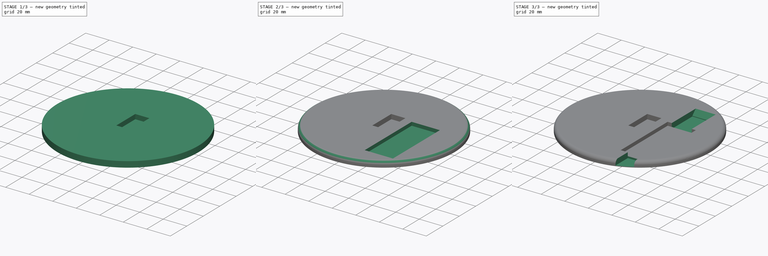
[diagram: build sequence overview — one tinted view per stage of 3, left to right]
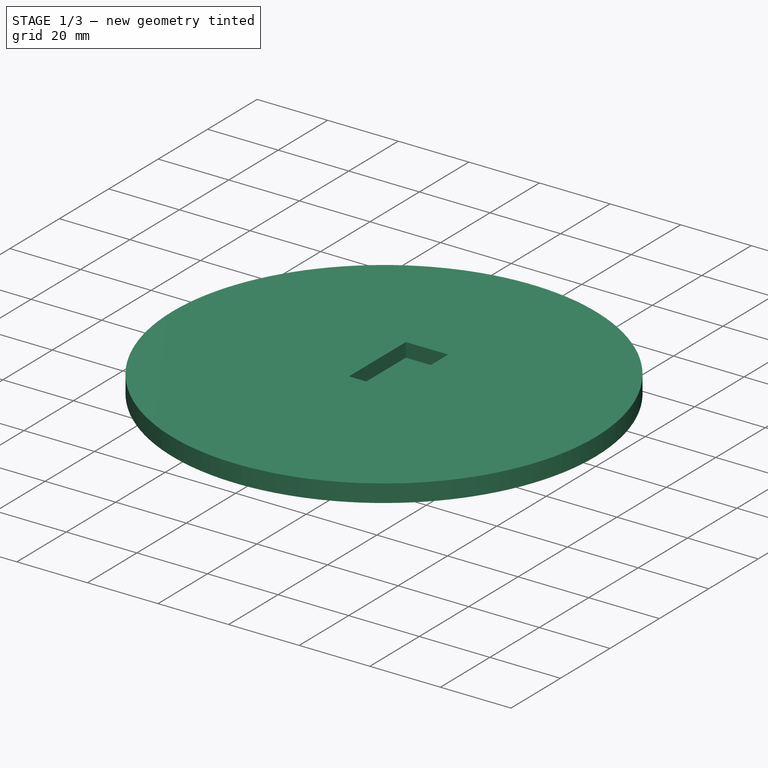
[diagram: stage 1 of 3 — iso view after this stage's code; geometry added in this stage tinted green]
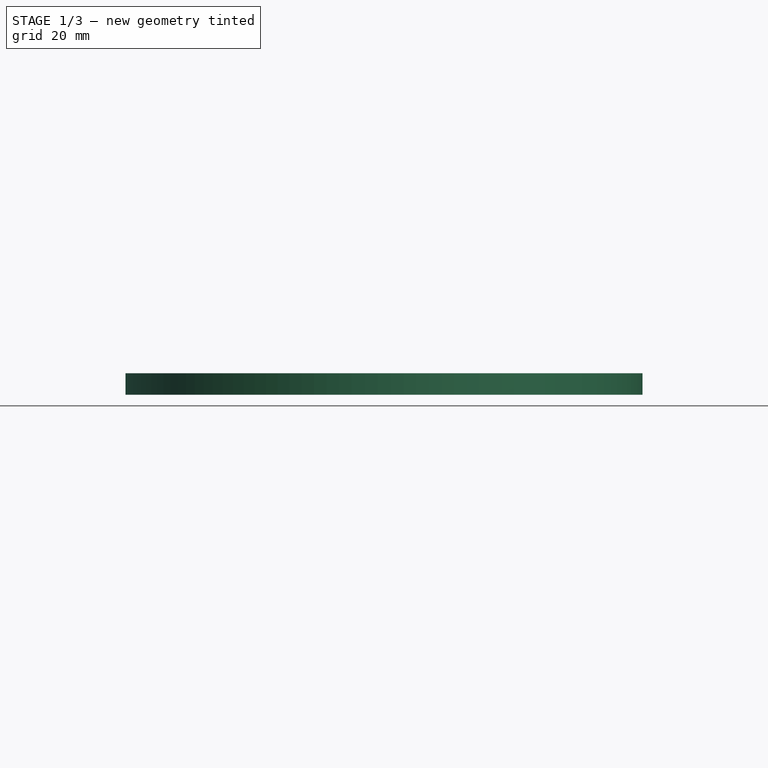
[diagram: stage 1 of 3 — front view after this stage's code; geometry added in this stage tinted green]
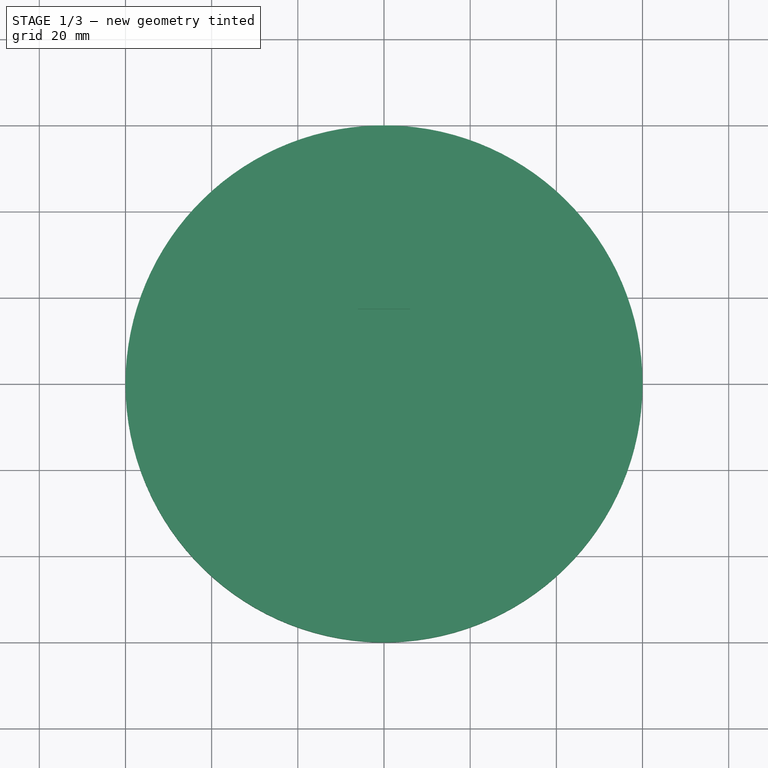
[diagram: stage 1 of 3 — top view after this stage's code; geometry added in this stage tinted green]
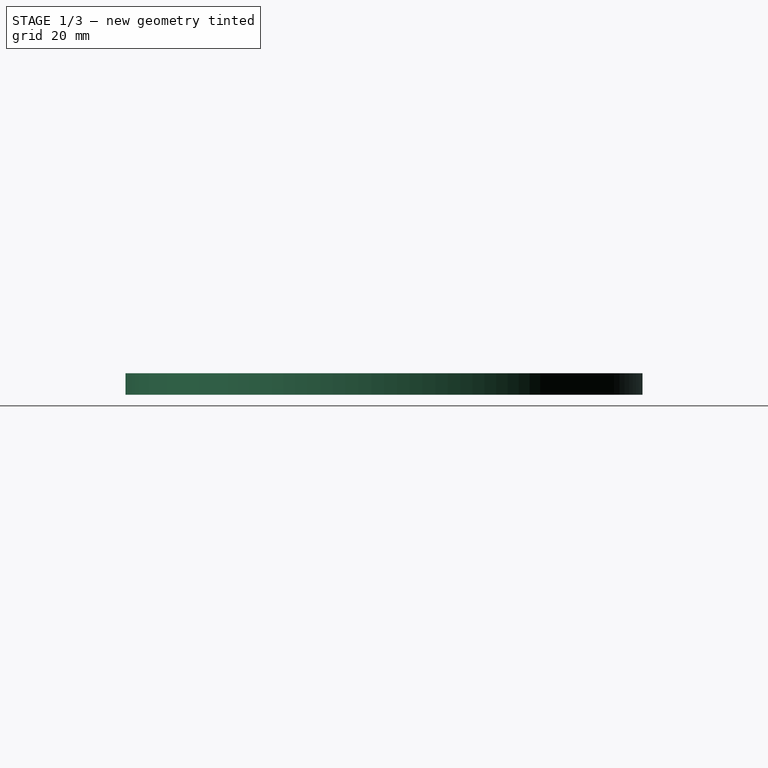
[diagram: stage 1 of 3 — right view after this stage's code; geometry added in this stage tinted green]
FCSTD DOCUMENT  (FreeCAD 0.18R4 (GitTag))
Label: ScannerServoBase
License: All rights reserved
LicenseURL: http://en.wikipedia.org/wiki/All_rights_reserved
objects: Sketcher::SketchObject×4, PartDesign::Pocket×3, PartDesign::Pad×1, PartDesign::Fillet×1, PartDesign::Chamfer×1, PartDesign::Body×1
note: 15 computed .brp shape members not serialized (recipe doc carries the construction recipe); baked Part::Feature solids carry a one-line shape summary decoded from their .brp

FEATURE [Sketcher::SketchObject] Sketch
  MapMode = 5
  Support = -> [XY_Plane]
  sketch-geometry (1):
    g0: Circle CenterX=0 CenterY=0 CenterZ=0 NormalX=0 NormalY=0 NormalZ=1 AngleXU=0 Radius=60
  constraints (2):
    c: Coincident(g0,g-1)
    c: Radius(g0) = 60
FEATURE [PartDesign::Pad] Pad
  Length = 5
  Length2 = 100
  Profile = -> Sketch
  Type = 0
FEATURE [Sketcher::SketchObject] Sketch001
  MapMode = 5
  Placement = pos=(0,0,5) rot=(0,0,1;0rad)
  Support = -> [Pad]
  sketch-geometry (4):
    g0: LineSegment StartX=-6 StartY=17.4 StartZ=0 EndX=6 EndY=17.4 EndZ=0
    g1: LineSegment StartX=6 StartY=17.4 StartZ=0 EndX=6 EndY=-5.6 EndZ=0
    g2: LineSegment StartX=6 StartY=-5.6 StartZ=0 EndX=-6 EndY=-5.6 EndZ=0
    g3: LineSegment StartX=-6 StartY=-5.6 StartZ=0 EndX=-6 EndY=17.4 EndZ=0
  constraints (12):
    c: Coincident(g0,g1)
    c: Coincident(g1,g2)
    c: Coincident(g2,g3)
    c: Coincident(g3,g0)
    c: Horizontal(g0)
    c: Horizontal(g2)
    c: Vertical(g1)
    c: Vertical(g3)
    c: DistanceX(g0,g0) = 12
    c: DistanceY(g1,g1) = 23
    c: DistanceY(g-1,g0) = 17.4
    c: DistanceX(g-1,g0) = 6
FEATURE [PartDesign::Pocket] Pocket
  BaseFeature = -> Pad
  Length = 4
  Length2 = 100
  Profile = -> Sketch001
  Type = 0
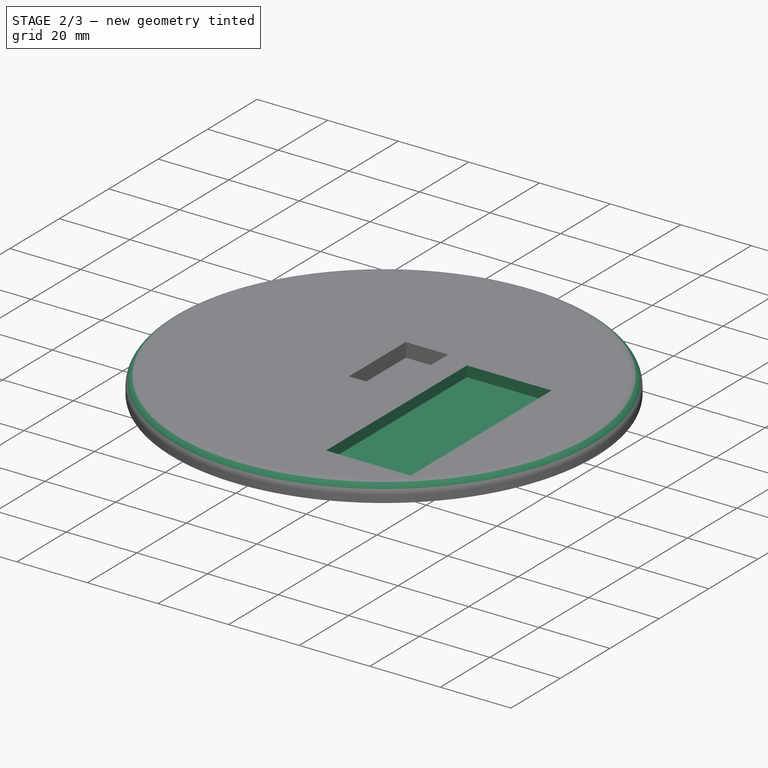
[diagram: stage 2 of 3 — iso view after this stage's code; geometry added in this stage tinted green]
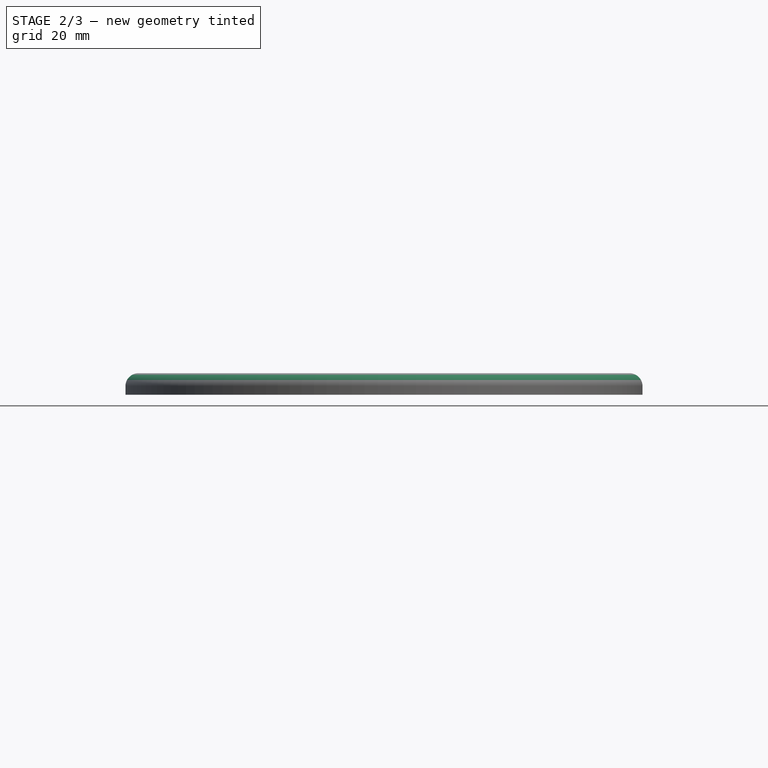
[diagram: stage 2 of 3 — front view after this stage's code; geometry added in this stage tinted green]
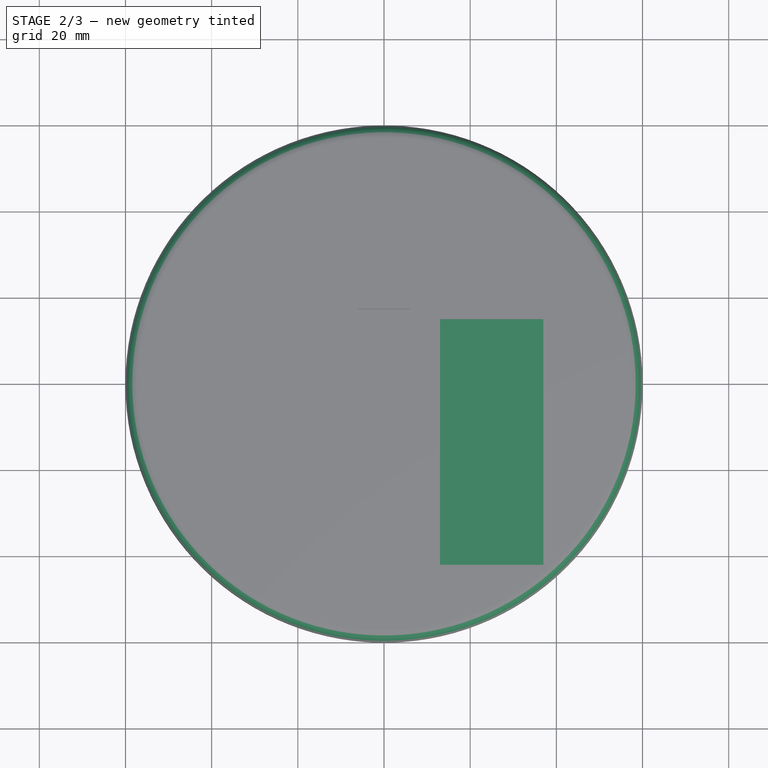
[diagram: stage 2 of 3 — top view after this stage's code; geometry added in this stage tinted green]
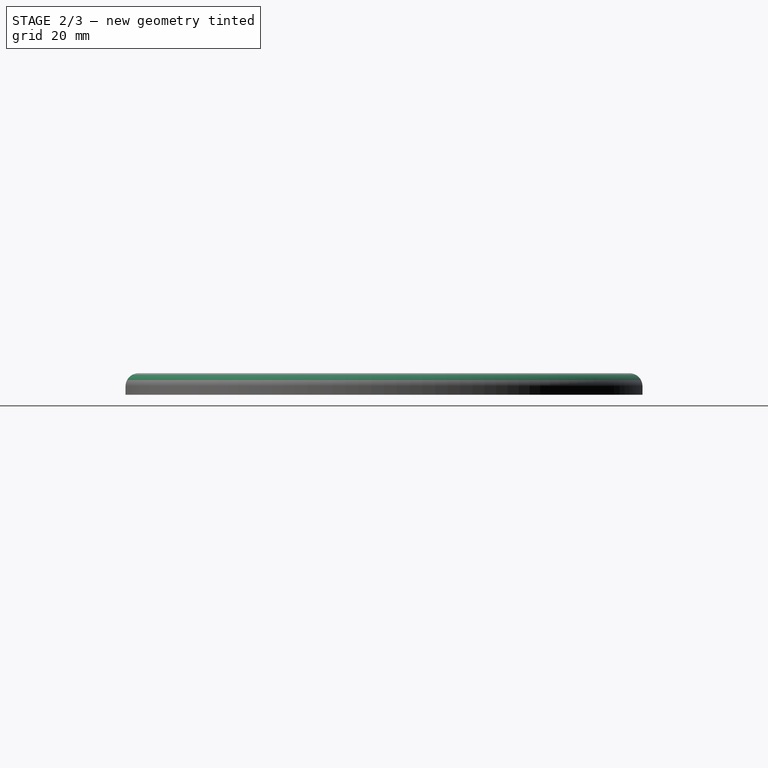
[diagram: stage 2 of 3 — right view after this stage's code; geometry added in this stage tinted green]
FEATURE [PartDesign::Fillet] Fillet
  Base = -> Pocket [Edge3]
  BaseFeature = -> Pocket
  Radius = 3
FEATURE [Sketcher::SketchObject] Sketch002
  MapMode = 5
  Placement = pos=(0,0,5) rot=(0,0,1;0rad)
  Support = -> [Fillet]
  sketch-geometry (4):
    g0: LineSegment StartX=13 StartY=15 StartZ=0 EndX=37 EndY=15 EndZ=0
    g1: LineSegment StartX=37 StartY=15 StartZ=0 EndX=37 EndY=-42 EndZ=0
    g2: LineSegment StartX=37 StartY=-42 StartZ=0 EndX=13 EndY=-42 EndZ=0
    g3: LineSegment StartX=13 StartY=-42 StartZ=0 EndX=13 EndY=15 EndZ=0
  constraints (12):
    c: Coincident(g0,g1)
    c: Coincident(g1,g2)
    c: Coincident(g2,g3)
    c: Coincident(g3,g0)
    c: Horizontal(g0)
    c: Horizontal(g2)
    c: Vertical(g1)
    c: Vertical(g3)
    c: DistanceX(g0,g0) = 24
    c: DistanceY(g1,g1) = 57
    c: DistanceX(g-1,g0) = 13
    c: DistanceY(g-1,g0) = 15
FEATURE [PartDesign::Pocket] Pocket001
  BaseFeature = -> Fillet
  Length = 3
  Length2 = 100
  Profile = -> Sketch002
  Type = 0
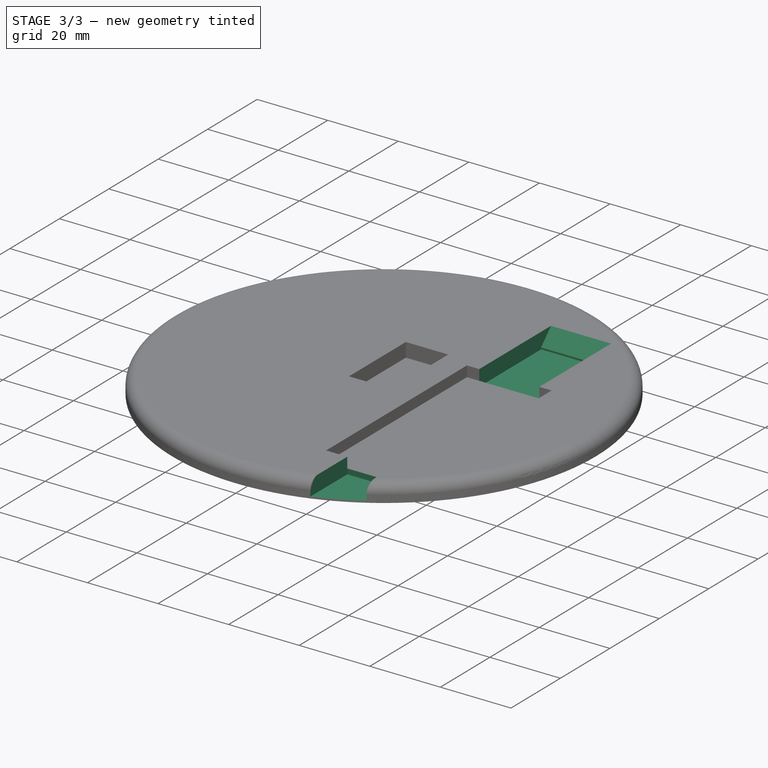
[diagram: stage 3 of 3 — iso view after this stage's code; geometry added in this stage tinted green]
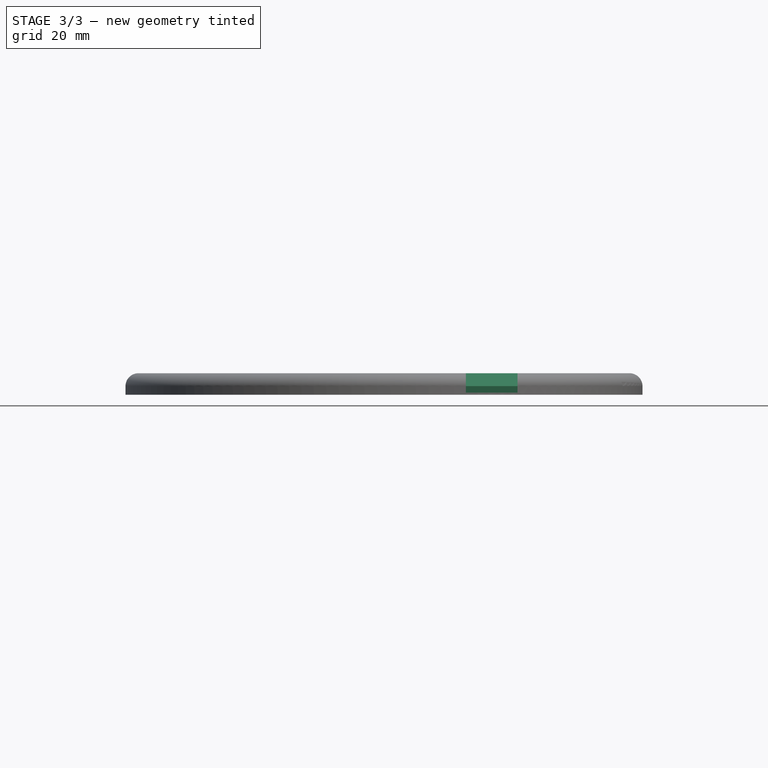
[diagram: stage 3 of 3 — front view after this stage's code; geometry added in this stage tinted green]
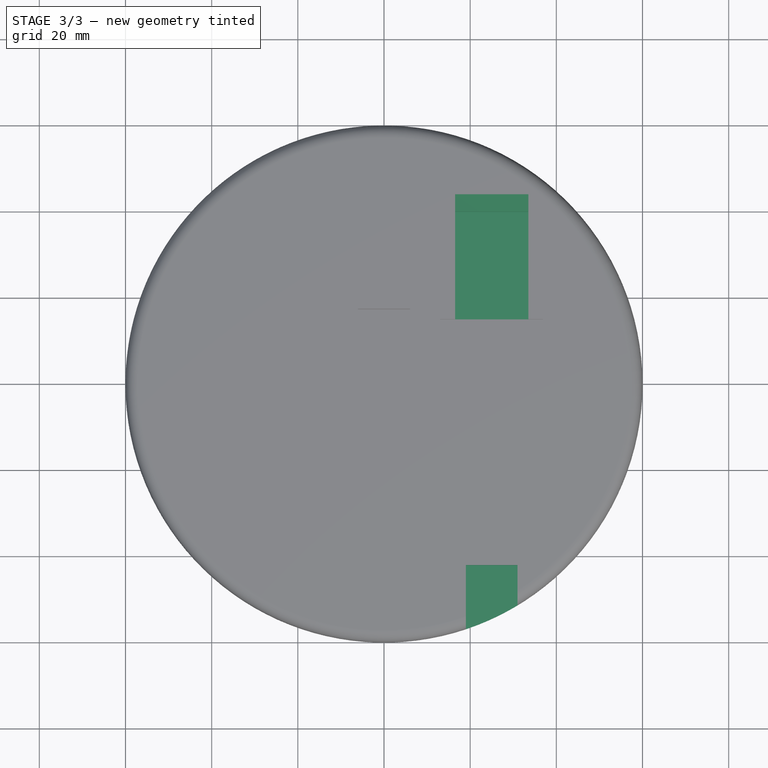
[diagram: stage 3 of 3 — top view after this stage's code; geometry added in this stage tinted green]
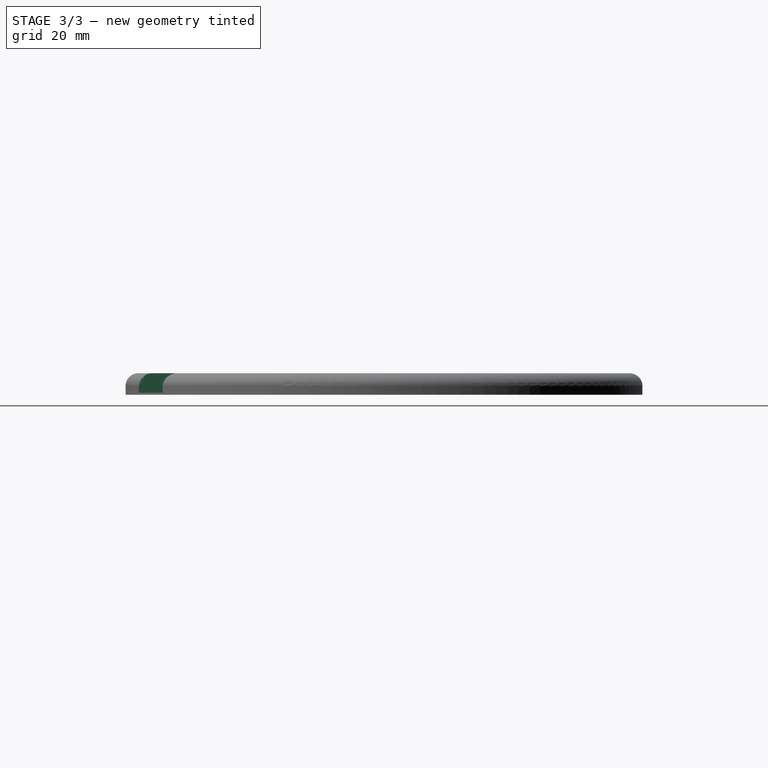
[diagram: stage 3 of 3 — right view after this stage's code; geometry added in this stage tinted green]
FEATURE [Sketcher::SketchObject] Sketch003
  MapMode = 5
  Placement = pos=(0,0,5) rot=(0,0,1;0rad)
  Support = -> [Pocket001]
  sketch-geometry (8):
    g0: LineSegment StartX=16.5 StartY=40 StartZ=0 EndX=33.5 EndY=40 EndZ=0
    g1: LineSegment StartX=33.5 StartY=40 StartZ=0 EndX=33.5 EndY=15 EndZ=0
    g2: LineSegment StartX=33.5 StartY=15 StartZ=0 EndX=16.5 EndY=15 EndZ=0
    g3: LineSegment StartX=16.5 StartY=15 StartZ=0 EndX=16.5 EndY=40 EndZ=0
    g4: LineSegment StartX=19 StartY=-42 StartZ=0 EndX=31 EndY=-42 EndZ=0
    g5: LineSegment StartX=31 StartY=-42 StartZ=0 EndX=31 EndY=-62 EndZ=0
    g6: LineSegment StartX=31 StartY=-62 StartZ=0 EndX=19 EndY=-62 EndZ=0
    g7: LineSegment StartX=19 StartY=-62 StartZ=0 EndX=19 EndY=-42 EndZ=0
  constraints (24):
    c: Coincident(g0,g1)
    c: Coincident(g1,g2)
    c: Coincident(g2,g3)
    c: Coincident(g3,g0)
    c: Horizontal(g0)
    c: Horizontal(g2)
    c: Vertical(g1)
    c: Vertical(g3)
    c: DistanceX(g0,g0) = 17
    c: DistanceX(g-1,g0) = 16.5
    c: DistanceY(g1,g1) = 25
    c: DistanceY(g-1,g2) = 15
    c: Coincident(g4,g5)
    c: Coincident(g5,g6)
    c: Coincident(g6,g7)
    c: Coincident(g7,g4)
    c: Horizontal(g4)
    c: Horizontal(g6)
    c: Vertical(g5)
    c: Vertical(g7)
    c: DistanceY(g5,g5) = 20
    c: DistanceY(g4,g-1) = 42
    c: DistanceX(g4,g4) = 12
    c: DistanceX(g-1,g4) = 19
FEATURE [PartDesign::Pocket] Pocket002
  BaseFeature = -> Pocket001
  Length = 4.5
  Length2 = 100
  Profile = -> Sketch003
  Type = 0
FEATURE [PartDesign::Chamfer] Chamfer
  Base = -> Pocket002 [Edge26]
  BaseFeature = -> Pocket002
  Size = 4
FEATURE [PartDesign::Body] Body
  Group = -> [Sketch,Pad,Sketch001,Pocket,Fillet,Sketch002,Pocket001,Sketch003,Pocket002,Chamfer]
  Origin = -> Origin
  Tip = -> Chamfer
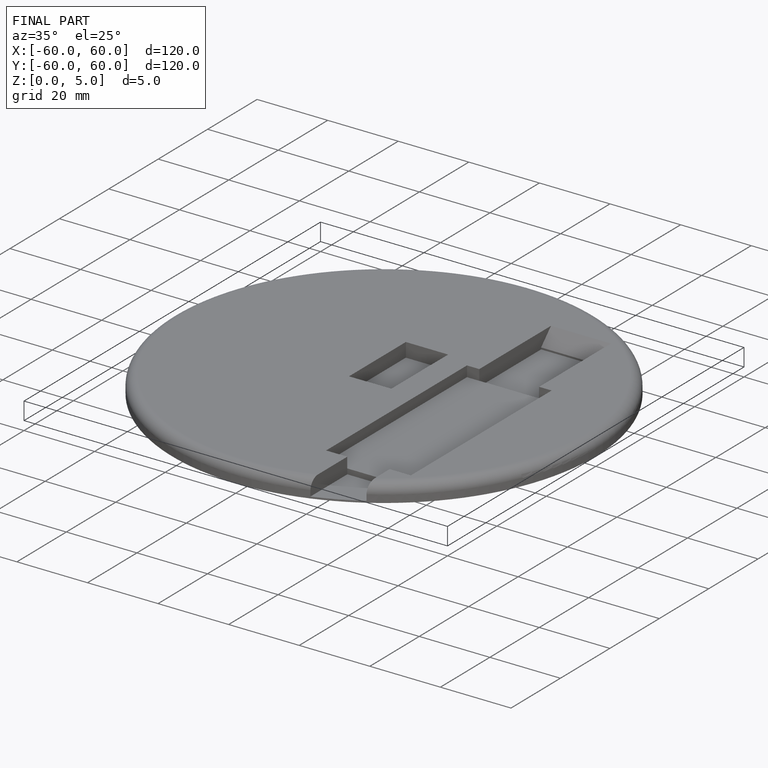
[diagram: finished part — iso view with bounding-box wireframe]
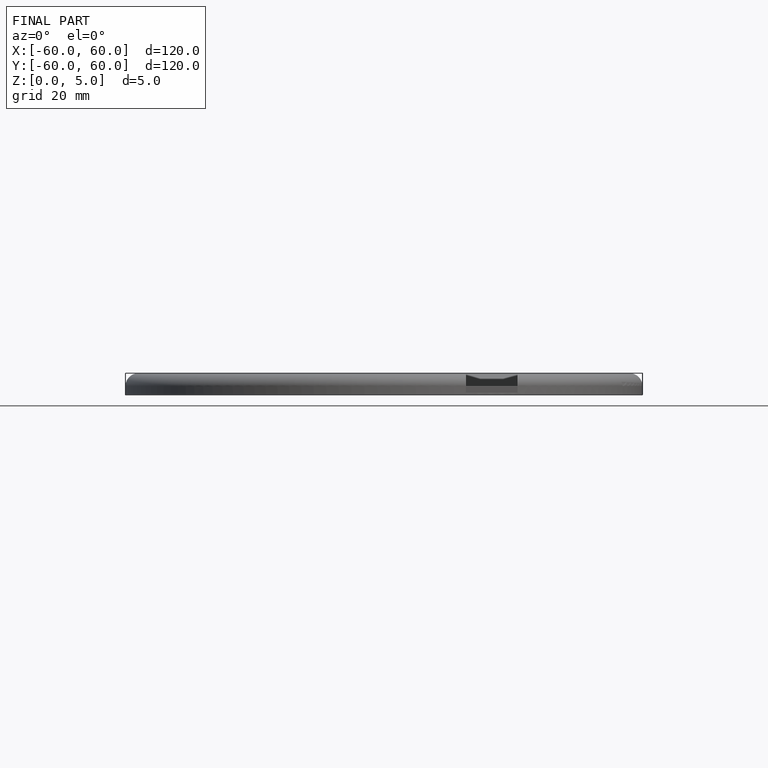
[diagram: finished part — front view with bounding-box wireframe]
